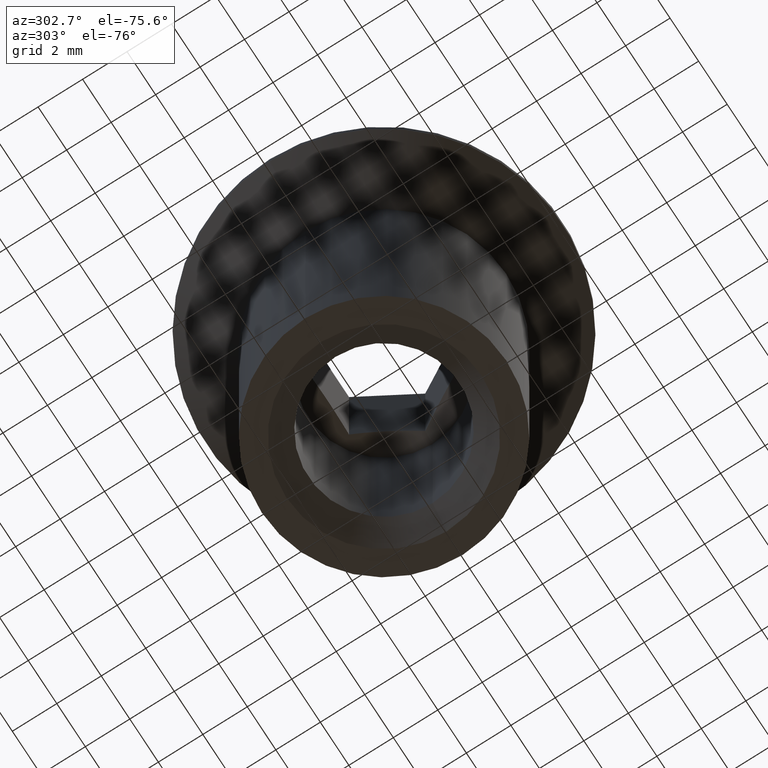
[diagram: clean part render]
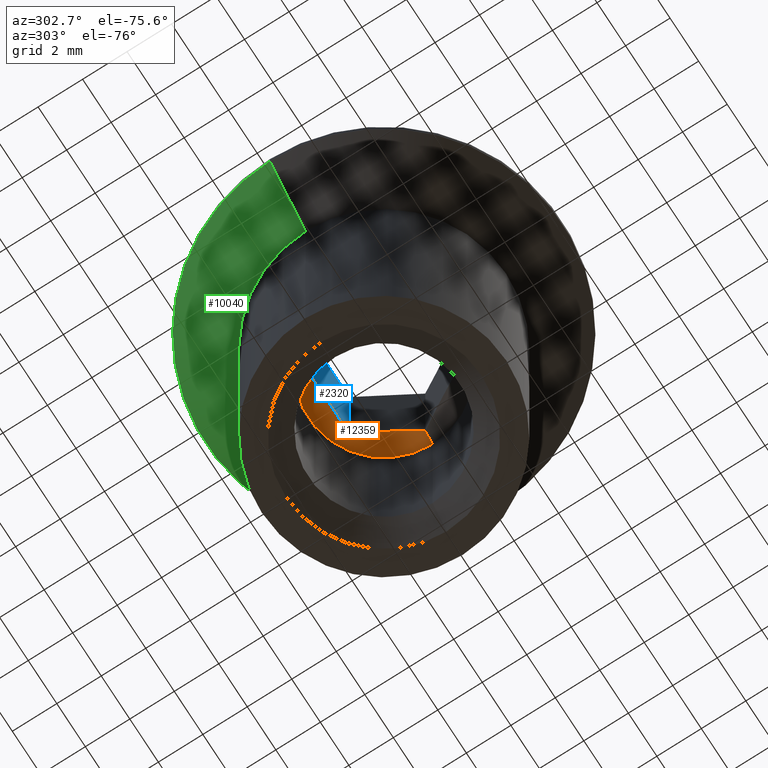
[diagram: same view with three faces highlighted in distinct colors, each labeled with its STEP entity id]
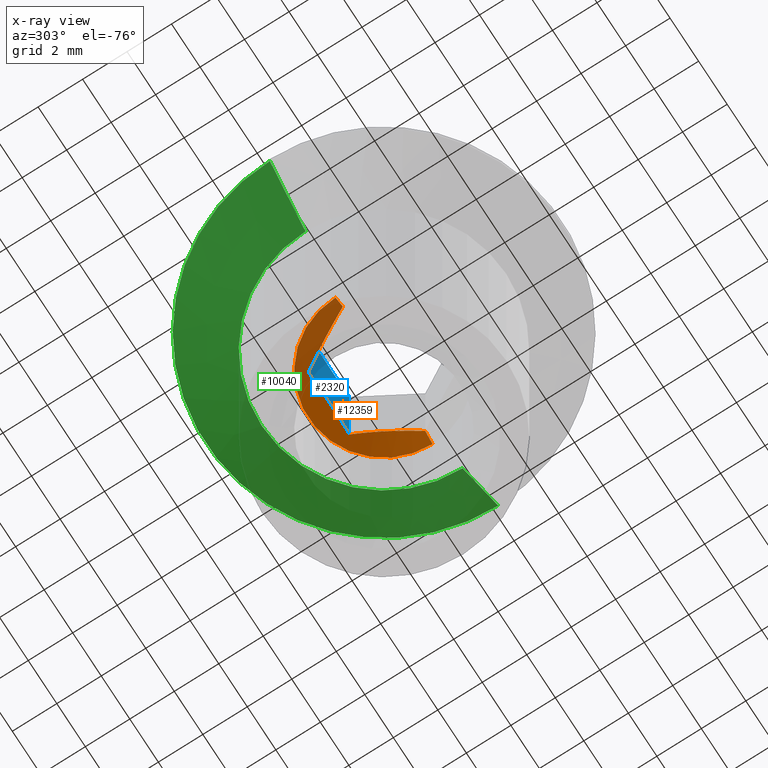
[diagram: x-ray of the same camera — body ghosted, the three highlighted faces saturated]
A machine part, auxiliary view with three faces highlighted in distinct colors.
The next image is the same camera in x-ray (body ghosted, the three faces saturated) — at least one of them is partly hidden behind the body in this view.
Their STEP definitions:

[orange] entity #12359 — the highlighted conical surface has half-angle 59 deg.
#41 = ORIENTED_EDGE ( 'NONE', *, *, #3386, .F. ) ;
#148 = CARTESIAN_POINT ( 'NONE',  ( -2.651472570902168300, 0.4075147923221707500, 2.449760654408629900 ) ) ;
#269 = FACE_OUTER_BOUND ( 'NONE', #7494, .T. ) ;
#449 = CARTESIAN_POINT ( 'NONE',  ( 0.4916955590643255500, 2.499999999999997800, 2.518327623225655300 ) ) ;
#752 = ORIENTED_EDGE ( 'NONE', *, *, #7052, .F. ) ;
#861 = VERTEX_POINT ( 'NONE', #3351 ) ;
#1164 = CARTESIAN_POINT ( 'NONE',  ( 3.399999999999997700, 4.163799117100997600E-016, 2.000000000000000000 ) ) ;
#1334 = VERTEX_POINT ( 'NONE', #2723 ) ;
#1423 = CARTESIAN_POINT ( 'NONE',  ( -2.412422255547018900, 0.8215620840826505200, 2.540395567009153600 ) ) ;
#1480 = CARTESIAN_POINT ( 'NONE',  ( -1.443375672974064500, 2.499999999999997800, 2.308390903988669900 ) ) ;
#1781 = CARTESIAN_POINT ( 'NONE',  ( -1.209125309970559200, 2.499999999999997800, 2.378766813049544300 ) ) ;
#2368 = VERTEX_POINT ( 'NONE', #3706 ) ;
#2404 = VECTOR ( 'NONE', #11560, 1000.000000000000000 ) ;
#2465 = CARTESIAN_POINT ( 'NONE',  ( -2.886751345948128700, -1.330137290575513100E-015, 2.308390903988669000 ) ) ;
#2723 = CARTESIAN_POINT ( 'NONE',  ( 2.886751345948129100, -1.809186622473961200E-015, 2.308390903988668500 ) ) ;
#3120 = CARTESIAN_POINT ( 'NONE',  ( 1.443375672974063900, 2.499999999999997800, 2.308390903988669900 ) ) ;
#3188 = EDGE_CURVE ( 'NONE', #5886, #13107, #10223, .T. ) ;
#3351 = CARTESIAN_POINT ( 'NONE',  ( 3.399999999999997700, 4.163799117100997600E-016, 2.000000000000000000 ) ) ;
#3386 = EDGE_CURVE ( 'NONE', #1334, #861, #15983, .T. ) ;
#3420 = CARTESIAN_POINT ( 'NONE',  ( 2.409192696220417800, 0.8271558449223831400, 2.518713501005156500 ) ) ;
#3706 = CARTESIAN_POINT ( 'NONE',  ( -2.886751345948128700, -1.330137290575513100E-015, 2.308390903988669000 ) ) ;
#3999 = CARTESIAN_POINT ( 'NONE',  ( -2.043782441156799700, 1.460064972299272000, 2.540962208946303300 ) ) ;
#4416 = CARTESIAN_POINT ( 'NONE',  ( -1.443375672974064500, 2.499999999999997800, 2.308390903988669900 ) ) ;
#5286 = CARTESIAN_POINT ( 'NONE',  ( -1.443375672974064500, 2.499999999999997800, 2.308390903988669900 ) ) ;
#5655 = ORIENTED_EDGE ( 'NONE', *, *, #3188, .F. ) ;
#5886 = VERTEX_POINT ( 'NONE', #1480 ) ;
#6266 = CARTESIAN_POINT ( 'NONE',  ( -1.680066129163376100, 2.090040104213455300, 2.437669810066551700 ) ) ;
#6838 = CARTESIAN_POINT ( 'NONE',  ( -0.9687023788913351500, 2.499999999999998200, 2.437964268627526000 ) ) ;
#7052 = EDGE_CURVE ( 'NONE', #13107, #1334, #14236, .T. ) ;
#7232 = CARTESIAN_POINT ( 'NONE',  ( 2.768938737272983000, 0.2040574239975820600, 2.379179860967339800 ) ) ;
#7384 = CARTESIAN_POINT ( 'NONE',  ( 0.0000000000000000000, 0.0000000000000000000, 2.000000000000000000 ) ) ;
#7494 = EDGE_LOOP ( 'NONE', ( #41, #752, #5655, #8464, #11130, #15188 ) ) ;
#7933 = CARTESIAN_POINT ( 'NONE',  ( -3.399999999999997700, 0.0000000000000000000, 2.000000000000000000 ) ) ;
#8130 = CARTESIAN_POINT ( 'NONE',  ( -0.4865365719643857100, 2.499999999999996900, 2.518925642805895000 ) ) ;
#8381 = CIRCLE ( 'NONE', #10220, 3.399999999999997700 ) ;
#8464 = ORIENTED_EDGE ( 'NONE', *, *, #9265, .F. ) ;
#8528 = CARTESIAN_POINT ( 'NONE',  ( 2.286344577765393500, 1.039935027700724700, 2.540962208946303300 ) ) ;
#8728 = DIRECTION ( 'NONE',  ( -0.0000000000000000000, -0.0000000000000000000, -1.000000000000000000 ) ) ;
#8890 = CARTESIAN_POINT ( 'NONE',  ( 0.0000000000000000000, 0.0000000000000000000, 2.000000000000000000 ) ) ;
#9249 = CARTESIAN_POINT ( 'NONE',  ( 0.9741223076143041800, 2.499999999999998200, 2.436780013471274500 ) ) ;
#9265 = EDGE_CURVE ( 'NONE', #2368, #5886, #10562, .T. ) ;
#9417 = CARTESIAN_POINT ( 'NONE',  ( 1.210381274474333600, 2.499999999999997800, 2.378389483244921300 ) ) ;
#9723 = CARTESIAN_POINT ( 'NONE',  ( -3.399999999999997700, 0.0000000000000000000, 2.000000000000000000 ) ) ;
#9870 = CARTESIAN_POINT ( 'NONE',  ( 1.443375672974063900, 2.499999999999997800, 2.308390903988669900 ) ) ;
#9971 = DIRECTION ( 'NONE',  ( -0.0000000000000000000, -0.0000000000000000000, -1.000000000000000000 ) ) ;
#10220 = AXIS2_PLACEMENT_3D ( 'NONE', #8890, #8728, #12465 ) ;
#10223 = B_SPLINE_CURVE_WITH_KNOTS ( 'NONE', 3,
 ( #4416, #1781, #6838, #8130, #13157, #10759, #449, #9249, #9417, #3120 ),
 .UNSPECIFIED., .F., .F.,
 ( 4, 2, 2, 2, 4 ),
 ( 0.002533735065925816500, 0.003264571737814535600, 0.003995408409703254600, 0.004726245081591973200, 0.005457081753480692700 ),
 .UNSPECIFIED. ) ;
#10562 = B_SPLINE_CURVE_WITH_KNOTS ( 'NONE', 3,
 ( #2465, #148, #1423, #3999, #12912, #6266, #15191, #5286 ),
 .UNSPECIFIED., .F., .F.,
 ( 4, 2, 2, 4 ),
 ( 2.386330728868349600E-007, 0.001458932498130400500, 0.002188279430659157200, 0.002917626363187914200 ),
 .UNSPECIFIED. ) ;
#10759 = CARTESIAN_POINT ( 'NONE',  ( 0.2440260799886059800, 2.499999999999998200, 2.540776291910732200 ) ) ;
#10990 = CARTESIAN_POINT ( 'NONE',  ( 1.678654448020024100, 2.092485207677825500, 2.449760654408630300 ) ) ;
#11130 = ORIENTED_EDGE ( 'NONE', *, *, #12886, .T. ) ;
#11213 = EDGE_CURVE ( 'NONE', #16294, #861, #8381, .T. ) ;
#11560 = DIRECTION ( 'NONE',  ( 0.8571673007021118900, 1.049727191138618100E-016, -0.5150380749100549300 ) ) ;
#11668 = DIRECTION ( 'NONE',  ( -0.8571673007021118900, 0.0000000000000000000, -0.5150380749100549300 ) ) ;
#12359 = ADVANCED_FACE ( 'NONE', ( #269 ), #15217, .F. ) ;
#12465 = DIRECTION ( 'NONE',  ( -1.000000000000000000, 0.0000000000000000000, 0.0000000000000000000 ) ) ;
#12886 = EDGE_CURVE ( 'NONE', #2368, #16294, #15951, .T. ) ;
#12912 = CARTESIAN_POINT ( 'NONE',  ( -1.920934322701776100, 1.672844155077613200, 2.518713501005156500 ) ) ;
#13107 = VERTEX_POINT ( 'NONE', #13517 ) ;
#13157 = CARTESIAN_POINT ( 'NONE',  ( -0.2440852333723199700, 2.499999999999997800, 2.540772822128629600 ) ) ;
#13517 = CARTESIAN_POINT ( 'NONE',  ( 1.443375672974063900, 2.499999999999997800, 2.308390903988669900 ) ) ;
#13557 = CARTESIAN_POINT ( 'NONE',  ( 2.650060889758817600, 0.4099598957865406800, 2.437669810066550400 ) ) ;
#13672 = CARTESIAN_POINT ( 'NONE',  ( 1.917704763375172900, 1.678437915917345500, 2.540395567009153100 ) ) ;
#14236 = B_SPLINE_CURVE_WITH_KNOTS ( 'NONE', 3,
 ( #9870, #10990, #13672, #8528, #3420, #13557, #7232, #15052 ),
 .UNSPECIFIED., .F., .F.,
 ( 4, 2, 2, 4 ),
 ( 2.386330728866519500E-007, 0.001458932498130400900, 0.002188279430659158100, 0.002917626363187915100 ),
 .UNSPECIFIED. ) ;
#14367 = VECTOR ( 'NONE', #11668, 1000.000000000000000 ) ;
#15052 = CARTESIAN_POINT ( 'NONE',  ( 2.886751345948129100, -1.809186622473961200E-015, 2.308390903988668500 ) ) ;
#15103 = DIRECTION ( 'NONE',  ( -1.000000000000000000, 0.0000000000000000000, 0.0000000000000000000 ) ) ;
#15188 = ORIENTED_EDGE ( 'NONE', *, *, #11213, .T. ) ;
#15191 = CARTESIAN_POINT ( 'NONE',  ( -1.561188281649210900, 2.295942576002415700, 2.379179860967340700 ) ) ;
#15217 = CONICAL_SURFACE ( 'NONE', #16508, 3.399999999999997700, 1.029744258676653600 ) ;
#15951 = LINE ( 'NONE', #7933, #14367 ) ;
#15983 = LINE ( 'NONE', #1164, #2404 ) ;
#16294 = VERTEX_POINT ( 'NONE', #9723 ) ;
#16508 = AXIS2_PLACEMENT_3D ( 'NONE', #7384, #9971, #15103 ) ;

[blue] entity #2320 — the highlighted planar face has unit normal (0, 1, 0).
#153 = CARTESIAN_POINT ( 'NONE',  ( 1.443375672974063900, 2.499999999999997800, 8.000000000000000000 ) ) ;
#449 = CARTESIAN_POINT ( 'NONE',  ( 0.4916955590643255500, 2.499999999999997800, 2.518327623225655300 ) ) ;
#840 = CARTESIAN_POINT ( 'NONE',  ( 1.443375672974063900, 2.499999999999997800, -8.000000000000000000 ) ) ;
#889 = ORIENTED_EDGE ( 'NONE', *, *, #8773, .T. ) ;
#1369 = ORIENTED_EDGE ( 'NONE', *, *, #15145, .T. ) ;
#1480 = CARTESIAN_POINT ( 'NONE',  ( -1.443375672974064500, 2.499999999999997800, 2.308390903988669900 ) ) ;
#1781 = CARTESIAN_POINT ( 'NONE',  ( -1.209125309970559200, 2.499999999999997800, 2.378766813049544300 ) ) ;
#2320 = ADVANCED_FACE ( 'NONE', ( #11606 ), #3814, .F. ) ;
#3120 = CARTESIAN_POINT ( 'NONE',  ( 1.443375672974063900, 2.499999999999997800, 2.308390903988669900 ) ) ;
#3188 = EDGE_CURVE ( 'NONE', #5886, #13107, #10223, .T. ) ;
#3814 = PLANE ( 'NONE',  #15625 ) ;
#3869 = DIRECTION ( 'NONE',  ( 0.0000000000000000000, 1.000000000000000000, 0.0000000000000000000 ) ) ;
#3917 = EDGE_LOOP ( 'NONE', ( #9209, #7653, #889, #1369 ) ) ;
#4416 = CARTESIAN_POINT ( 'NONE',  ( -1.443375672974064500, 2.499999999999997800, 2.308390903988669900 ) ) ;
#4485 = DIRECTION ( 'NONE',  ( -1.000000000000000000, 0.0000000000000000000, 0.0000000000000000000 ) ) ;
#5422 = EDGE_CURVE ( 'NONE', #5886, #12225, #14566, .T. ) ;
#5886 = VERTEX_POINT ( 'NONE', #1480 ) ;
#6838 = CARTESIAN_POINT ( 'NONE',  ( -0.9687023788913351500, 2.499999999999998200, 2.437964268627526000 ) ) ;
#7457 = VECTOR ( 'NONE', #4485, 1000.000000000000000 ) ;
#7653 = ORIENTED_EDGE ( 'NONE', *, *, #3188, .T. ) ;
#7772 = VECTOR ( 'NONE', #12598, 1000.000000000000000 ) ;
#8130 = CARTESIAN_POINT ( 'NONE',  ( -0.4865365719643857100, 2.499999999999996900, 2.518925642805895000 ) ) ;
#8576 = CARTESIAN_POINT ( 'NONE',  ( -1.443375672974064500, 2.499999999999997800, 8.000000000000000000 ) ) ;
#8773 = EDGE_CURVE ( 'NONE', #13107, #15892, #14028, .T. ) ;
#9209 = ORIENTED_EDGE ( 'NONE', *, *, #5422, .F. ) ;
#9249 = CARTESIAN_POINT ( 'NONE',  ( 0.9741223076143041800, 2.499999999999998200, 2.436780013471274500 ) ) ;
#9417 = CARTESIAN_POINT ( 'NONE',  ( 1.210381274474333600, 2.499999999999997800, 2.378389483244921300 ) ) ;
#9435 = VECTOR ( 'NONE', #11086, 1000.000000000000000 ) ;
#10223 = B_SPLINE_CURVE_WITH_KNOTS ( 'NONE', 3,
 ( #4416, #1781, #6838, #8130, #13157, #10759, #449, #9249, #9417, #3120 ),
 .UNSPECIFIED., .F., .F.,
 ( 4, 2, 2, 2, 4 ),
 ( 0.002533735065925816500, 0.003264571737814535600, 0.003995408409703254600, 0.004726245081591973200, 0.005457081753480692700 ),
 .UNSPECIFIED. ) ;
#10677 = LINE ( 'NONE', #12041, #7457 ) ;
#10759 = CARTESIAN_POINT ( 'NONE',  ( 0.2440260799886059800, 2.499999999999998200, 2.540776291910732200 ) ) ;
#11086 = DIRECTION ( 'NONE',  ( -0.0000000000000000000, -0.0000000000000000000, 1.000000000000000000 ) ) ;
#11353 = CARTESIAN_POINT ( 'NONE',  ( -1.443375672974064500, 2.499999999999997800, -8.000000000000000000 ) ) ;
#11475 = CARTESIAN_POINT ( 'NONE',  ( 1.443375672974063900, 2.499999999999997800, -8.000000000000000000 ) ) ;
#11606 = FACE_OUTER_BOUND ( 'NONE', #3917, .T. ) ;
#12041 = CARTESIAN_POINT ( 'NONE',  ( 1.443375672974063900, 2.499999999999997800, 8.000000000000000000 ) ) ;
#12225 = VERTEX_POINT ( 'NONE', #8576 ) ;
#12598 = DIRECTION ( 'NONE',  ( -0.0000000000000000000, -0.0000000000000000000, 1.000000000000000000 ) ) ;
#13107 = VERTEX_POINT ( 'NONE', #13517 ) ;
#13157 = CARTESIAN_POINT ( 'NONE',  ( -0.2440852333723199700, 2.499999999999997800, 2.540772822128629600 ) ) ;
#13517 = CARTESIAN_POINT ( 'NONE',  ( 1.443375672974063900, 2.499999999999997800, 2.308390903988669900 ) ) ;
#14002 = DIRECTION ( 'NONE',  ( 0.0000000000000000000, -0.0000000000000000000, 1.000000000000000000 ) ) ;
#14028 = LINE ( 'NONE', #840, #9435 ) ;
#14566 = LINE ( 'NONE', #11353, #7772 ) ;
#15145 = EDGE_CURVE ( 'NONE', #15892, #12225, #10677, .T. ) ;
#15625 = AXIS2_PLACEMENT_3D ( 'NONE', #11475, #3869, #14002 ) ;
#15892 = VERTEX_POINT ( 'NONE', #153 ) ;

[green] entity #10040 — the highlighted conical surface has half-angle 45 deg.
#562 = VERTEX_POINT ( 'NONE', #6800 ) ;
#665 = LINE ( 'NONE', #6805, #6822 ) ;
#1069 = FACE_OUTER_BOUND ( 'NONE', #1918, .T. ) ;
#1292 = CIRCLE ( 'NONE', #9899, 5.500000000000000000 ) ;
#1918 = EDGE_LOOP ( 'NONE', ( #10073, #3409, #11850, #2525 ) ) ;
#2089 = DIRECTION ( 'NONE',  ( 0.7071067811865487900, 0.0000000000000000000, 0.7071067811865463500 ) ) ;
#2192 = VERTEX_POINT ( 'NONE', #4278 ) ;
#2254 = VERTEX_POINT ( 'NONE', #13511 ) ;
#2390 = AXIS2_PLACEMENT_3D ( 'NONE', #10737, #3096, #11998 ) ;
#2525 = ORIENTED_EDGE ( 'NONE', *, *, #4032, .F. ) ;
#2593 = VERTEX_POINT ( 'NONE', #4472 ) ;
#2828 = DIRECTION ( 'NONE',  ( -0.0000000000000000000, -0.0000000000000000000, -1.000000000000000000 ) ) ;
#3096 = DIRECTION ( 'NONE',  ( 0.0000000000000000000, 0.0000000000000000000, 1.000000000000000000 ) ) ;
#3132 = CARTESIAN_POINT ( 'NONE',  ( 0.0000000000000000000, -1.898202538678397600E-015, 7.699999999999991300 ) ) ;
#3186 = DIRECTION ( 'NONE',  ( -0.0000000000000000000, -0.0000000000000000000, -1.000000000000000000 ) ) ;
#3409 = ORIENTED_EDGE ( 'NONE', *, *, #12009, .T. ) ;
#4032 = EDGE_CURVE ( 'NONE', #562, #2254, #13586, .T. ) ;
#4278 = CARTESIAN_POINT ( 'NONE',  ( -5.500000000000000000, -1.071565949253933900E-015, 5.200000000000000200 ) ) ;
#4472 = CARTESIAN_POINT ( 'NONE',  ( -8.000000000000000000, -1.898202538678397600E-015, 7.699999999999991300 ) ) ;
#4885 = AXIS2_PLACEMENT_3D ( 'NONE', #3132, #3186, #9324 ) ;
#5416 = DIRECTION ( 'NONE',  ( -1.000000000000000000, 0.0000000000000000000, 0.0000000000000000000 ) ) ;
#5945 = CARTESIAN_POINT ( 'NONE',  ( 5.500000000000000000, -1.898202538678397600E-015, 5.200000000000000200 ) ) ;
#6800 = CARTESIAN_POINT ( 'NONE',  ( 5.500000000000000000, -1.898202538678397600E-015, 5.200000000000000200 ) ) ;
#6805 = CARTESIAN_POINT ( 'NONE',  ( -5.500000000000000000, -1.224646799147353300E-015, 5.200000000000000200 ) ) ;
#6822 = VECTOR ( 'NONE', #9388, 1000.000000000000000 ) ;
#9324 = DIRECTION ( 'NONE',  ( -1.000000000000000000, 0.0000000000000000000, 0.0000000000000000000 ) ) ;
#9388 = DIRECTION ( 'NONE',  ( -0.7071067811865487900, 8.659560562354948900E-017, 0.7071067811865463500 ) ) ;
#9899 = AXIS2_PLACEMENT_3D ( 'NONE', #12990, #2828, #5416 ) ;
#10040 = ADVANCED_FACE ( 'NONE', ( #1069 ), #14447, .T. ) ;
#10073 = ORIENTED_EDGE ( 'NONE', *, *, #13666, .F. ) ;
#10598 = EDGE_CURVE ( 'NONE', #2593, #2254, #13164, .T. ) ;
#10737 = CARTESIAN_POINT ( 'NONE',  ( 0.0000000000000000000, -1.898202538678397600E-015, 5.200000000000000200 ) ) ;
#11850 = ORIENTED_EDGE ( 'NONE', *, *, #10598, .T. ) ;
#11998 = DIRECTION ( 'NONE',  ( 1.000000000000000000, 0.0000000000000000000, 0.0000000000000000000 ) ) ;
#12009 = EDGE_CURVE ( 'NONE', #2192, #2593, #665, .T. ) ;
#12990 = CARTESIAN_POINT ( 'NONE',  ( 0.0000000000000000000, -1.898202538678397600E-015, 5.200000000000000200 ) ) ;
#13164 = CIRCLE ( 'NONE', #4885, 8.000000000000000000 ) ;
#13511 = CARTESIAN_POINT ( 'NONE',  ( 8.000000000000000000, -9.184850993605149900E-016, 7.699999999999991300 ) ) ;
#13586 = LINE ( 'NONE', #5945, #14582 ) ;
#13666 = EDGE_CURVE ( 'NONE', #2192, #562, #1292, .T. ) ;
#14447 = CONICAL_SURFACE ( 'NONE', #2390, 5.500000000000000000, 0.7853981633974500600 ) ;
#14582 = VECTOR ( 'NONE', #2089, 1000.000000000000000 ) ;